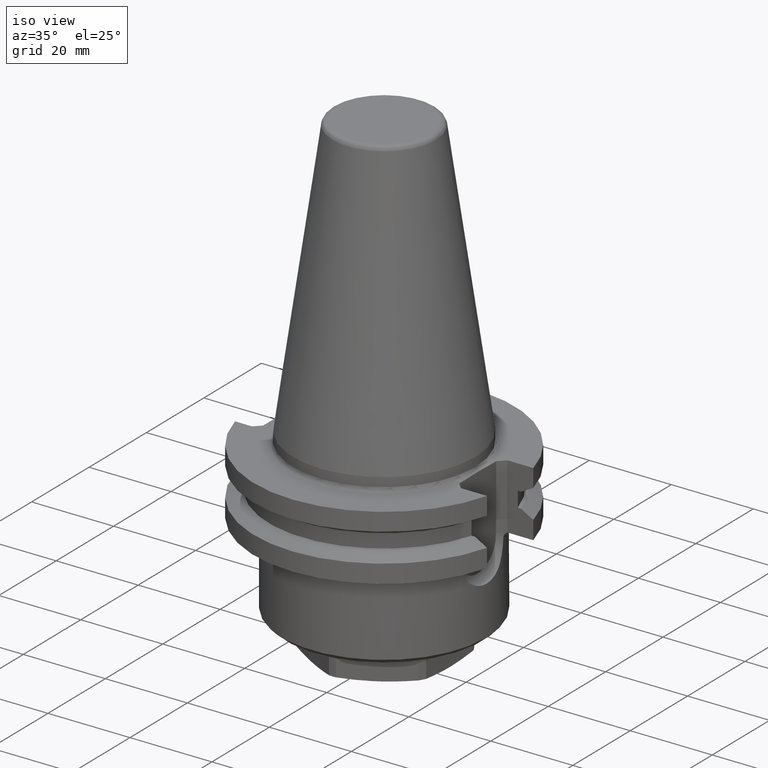
[diagram: clean part render]
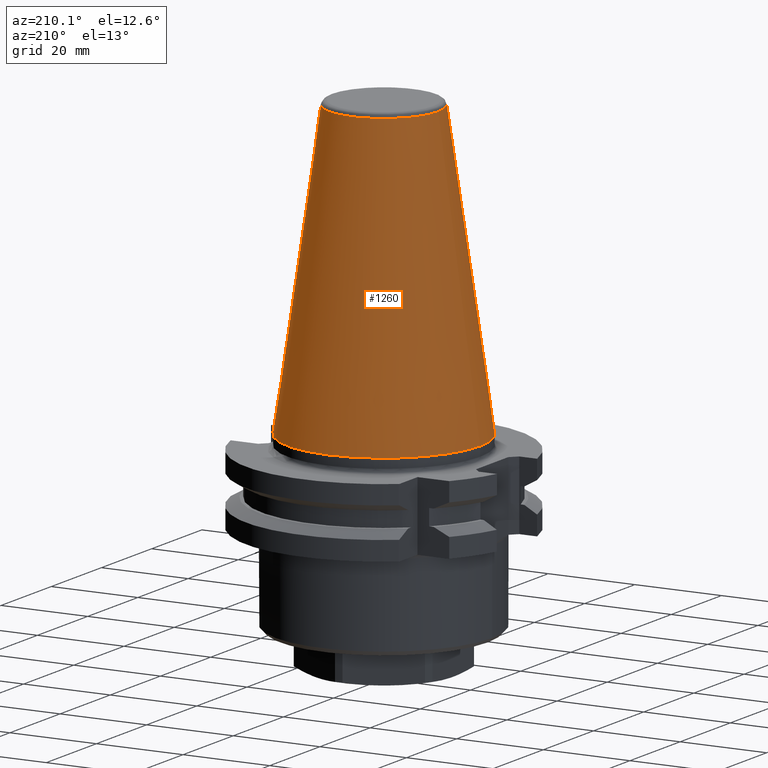
[diagram: tour spotlight — one face highlighted and labeled with its STEP entity id]
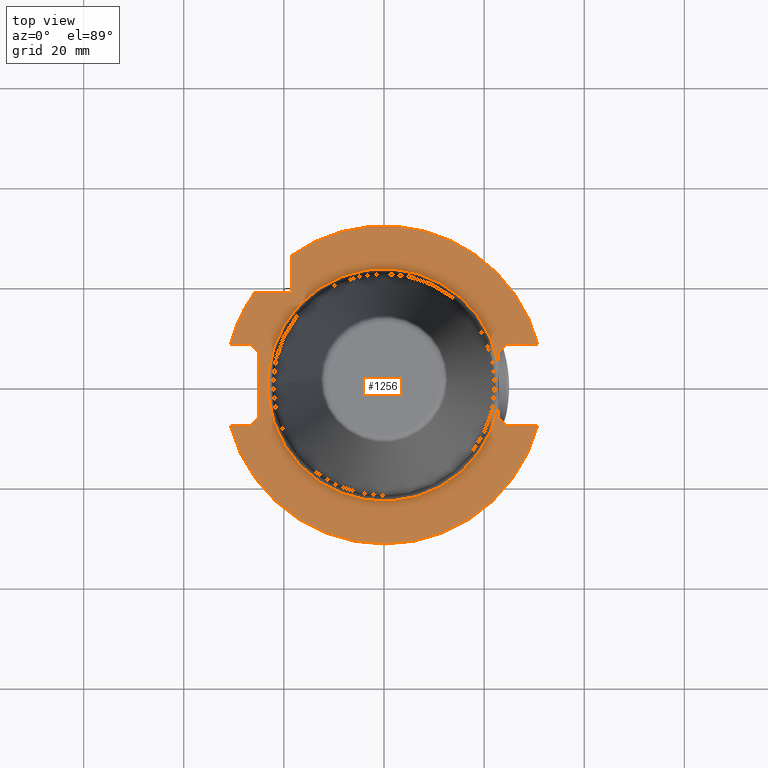
[diagram: tour spotlight — one face highlighted and labeled with its STEP entity id]
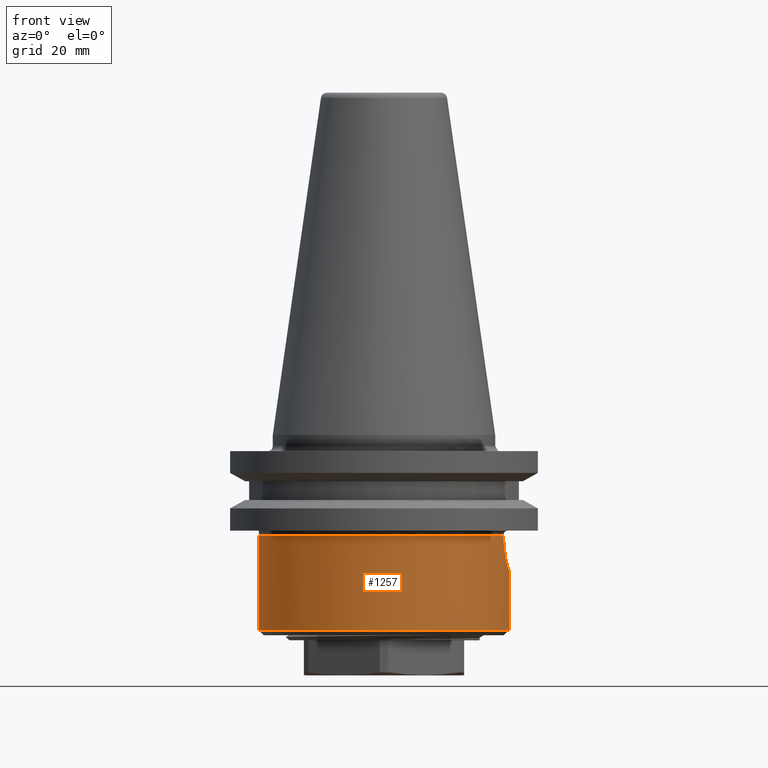
[diagram: tour spotlight — one face highlighted and labeled with its STEP entity id]
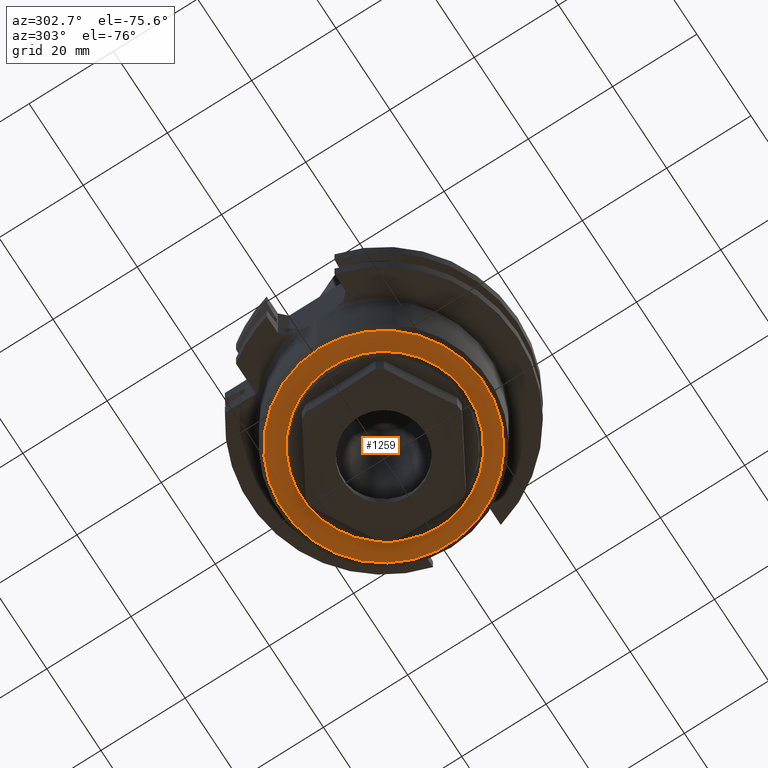
[diagram: tour spotlight — one face highlighted and labeled with its STEP entity id]
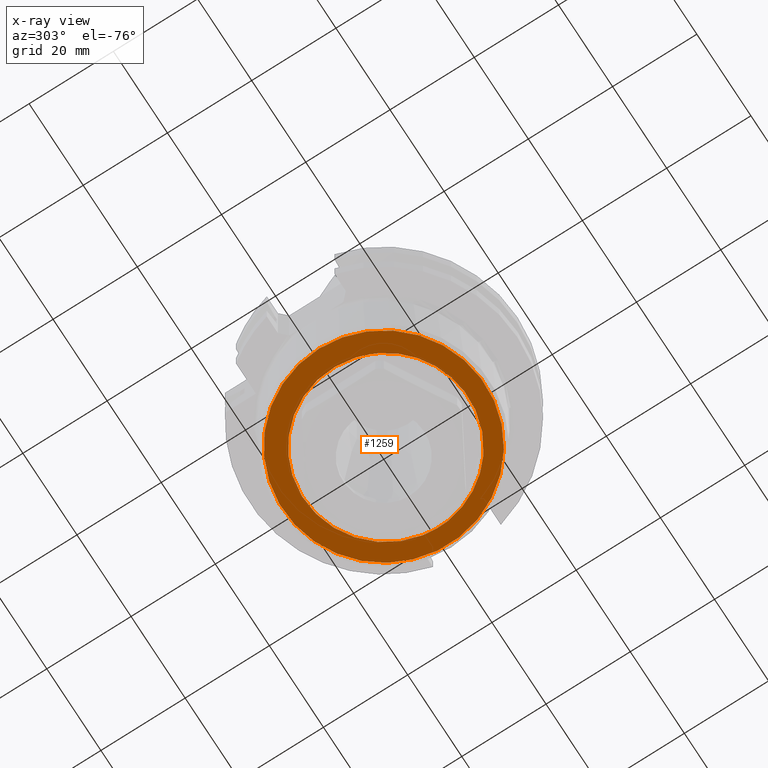
[diagram: x-ray of the same camera — body ghosted, this tour face saturated]
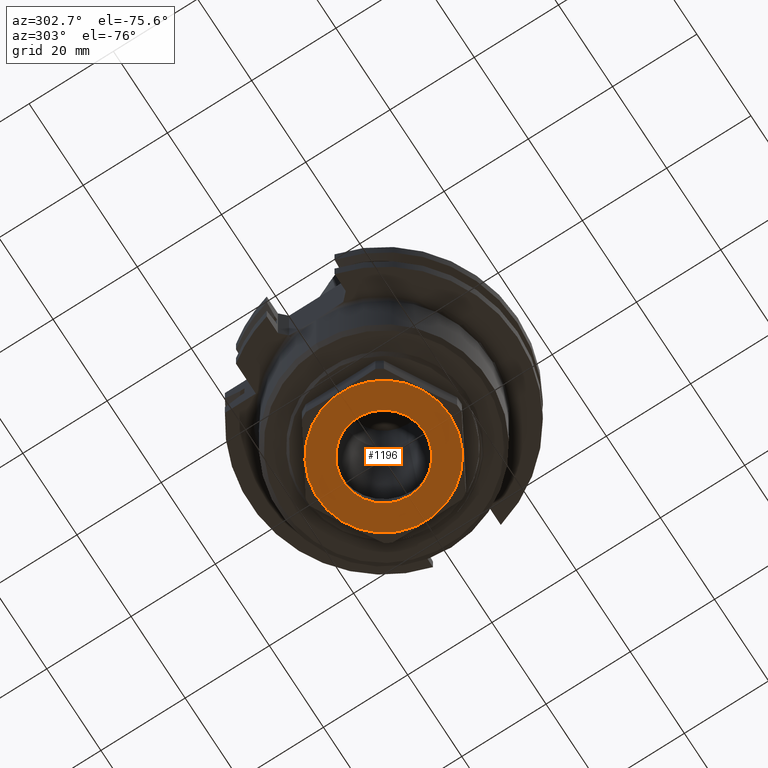
[diagram: tour spotlight — one face highlighted and labeled with its STEP entity id]
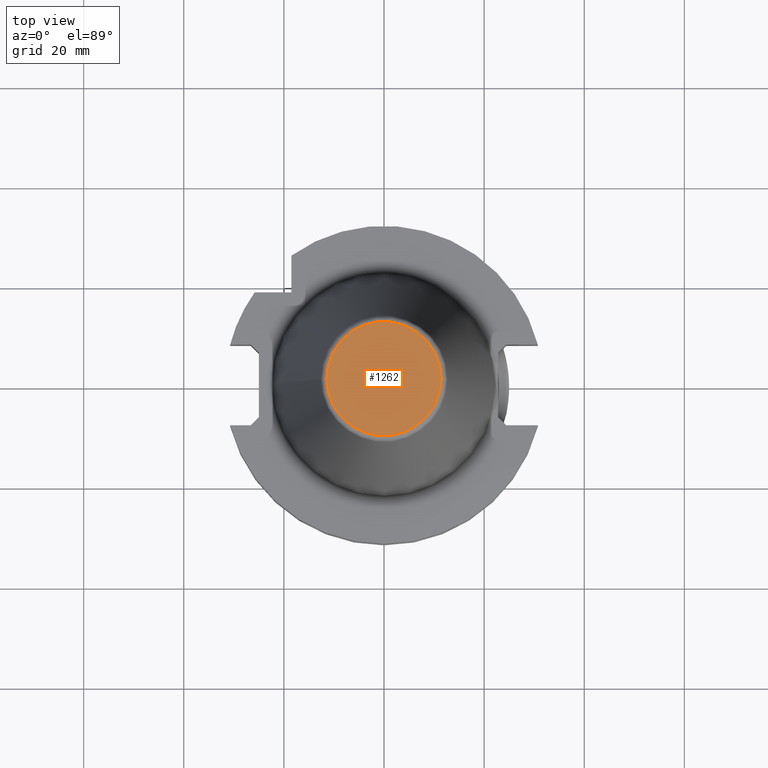
[diagram: tour spotlight — one face highlighted and labeled with its STEP entity id]
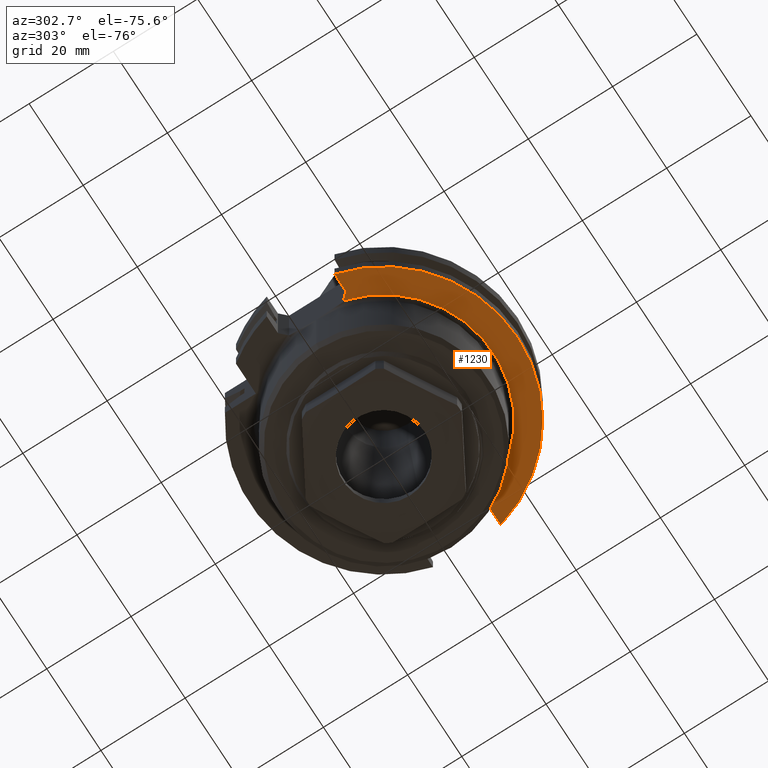
[diagram: tour spotlight — one face highlighted and labeled with its STEP entity id]
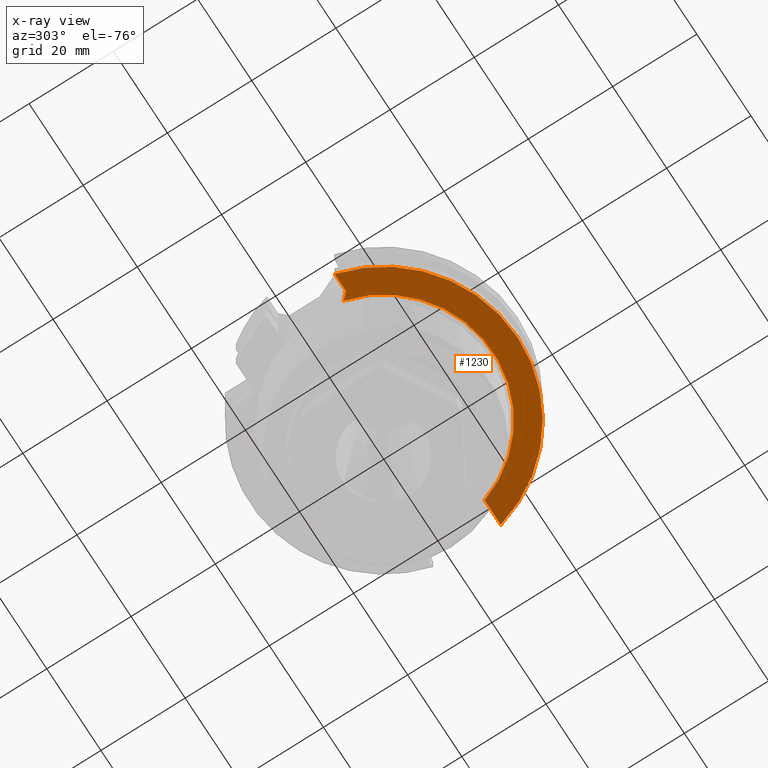
[diagram: x-ray of the same camera — body ghosted, this tour face saturated]
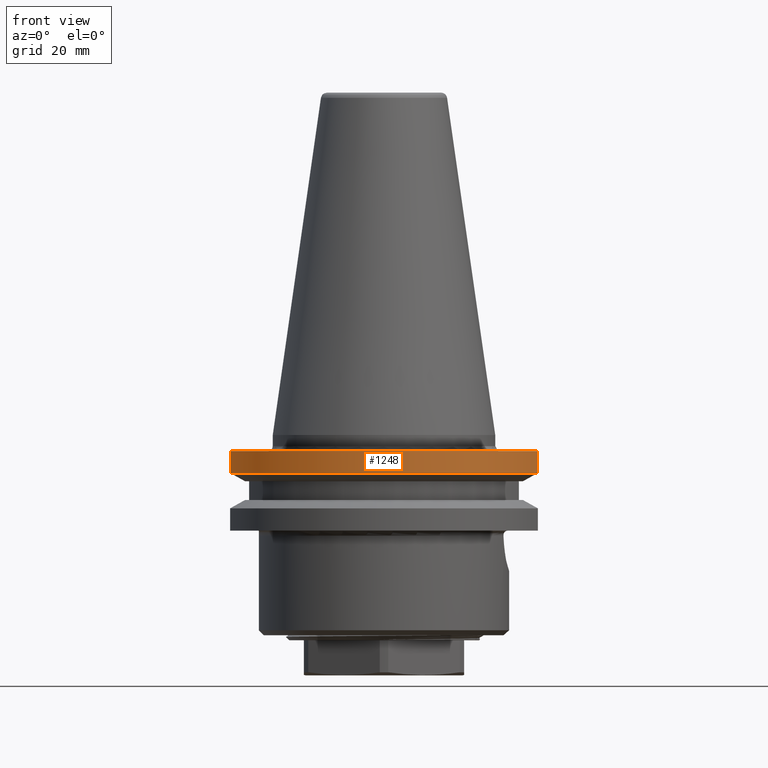
[diagram: tour spotlight — one face highlighted and labeled with its STEP entity id]
A machine part: a face-by-face anatomy tour. The part has 74 B-rep faces; the first image is the clean iso view, then the 8 largest visible faces are spotlighted one at a time (largest first), each with its STEP entity span.

Face 1 — auxiliary view, entity #1260. In plain terms, the highlighted conical surface has half-angle 8.13 deg.
Definition (entity closure, byte-faithful):
#258=CONICAL_SURFACE('',#1395,22.225,0.141897013516391);
#601=ORIENTED_EDGE('',*,*,#689,.F.);
#602=ORIENTED_EDGE('',*,*,#790,.T.);
#689=EDGE_CURVE('',#848,#848,#947,.T.);
#790=EDGE_CURVE('',#914,#914,#973,.F.);
#848=VERTEX_POINT('',#2257);
#914=VERTEX_POINT('',#2526);
#947=CIRCLE('',#1332,22.225);
#973=CIRCLE('',#1396,12.600759170466);
#1054=EDGE_LOOP('',(#601));
#1055=EDGE_LOOP('',(#602));
#1145=FACE_BOUND('',#1054,.T.);
#1146=FACE_BOUND('',#1055,.T.);
#1260=ADVANCED_FACE('',(#1145,#1146),#258,.T.);
#1332=AXIS2_PLACEMENT_3D('',#2256,#1539,#1540);
#1395=AXIS2_PLACEMENT_3D('',#2524,#1719,#1720);
#1396=AXIS2_PLACEMENT_3D('',#2525,#1721,#1722);
#1539=DIRECTION('',(0.,0.,-1.));
#1540=DIRECTION('',(-1.,0.,0.));
#1719=DIRECTION('',(0.,0.,-1.));
#1720=DIRECTION('',(-1.,0.,0.));
#1721=DIRECTION('',(0.,0.,1.));
#1722=DIRECTION('',(1.,0.,0.));
#2256=CARTESIAN_POINT('',(0.,0.,0.));
#2257=CARTESIAN_POINT('',(-22.225,0.,0.));
#2524=CARTESIAN_POINT('',(0.,0.,0.));
#2525=CARTESIAN_POINT('',(0.,0.,67.369705578675));
#2526=CARTESIAN_POINT('',(12.600759170466,0.,67.369705578675));

Face 2 — top view, entity #1256. In plain terms, the highlighted planar face has unit normal (0, 0, 1).
Definition (entity closure, byte-faithful):
#103=LINE('',#2449,#183);
#106=LINE('',#2457,#186);
#108=LINE('',#2461,#188);
#110=LINE('',#2474,#190);
#111=LINE('',#2475,#191);
#113=LINE('',#2479,#193);
#115=LINE('',#2483,#195);
#118=LINE('',#2491,#198);
#120=LINE('',#2495,#200);
#122=LINE('',#2499,#202);
#124=LINE('',#2503,#204);
#126=LINE('',#2507,#206);
#129=LINE('',#2515,#209);
#183=VECTOR('',#1642,1000.);
#186=VECTOR('',#1651,1000.);
#188=VECTOR('',#1655,1000.);
#190=VECTOR('',#1663,1000.);
#191=VECTOR('',#1664,1000.);
#193=VECTOR('',#1668,1000.);
#195=VECTOR('',#1672,1000.);
#198=VECTOR('',#1681,1000.);
#200=VECTOR('',#1685,1000.);
#202=VECTOR('',#1689,1000.);
#204=VECTOR('',#1693,1000.);
#206=VECTOR('',#1697,1000.);
#209=VECTOR('',#1706,1000.);
#571=ORIENTED_EDGE('',*,*,#787,.F.);
#572=ORIENTED_EDGE('',*,*,#786,.F.);
#573=ORIENTED_EDGE('',*,*,#783,.T.);
#574=ORIENTED_EDGE('',*,*,#781,.T.);
#575=ORIENTED_EDGE('',*,*,#779,.T.);
#576=ORIENTED_EDGE('',*,*,#777,.T.);
#577=ORIENTED_EDGE('',*,*,#775,.T.);
#578=ORIENTED_EDGE('',*,*,#773,.F.);
#579=ORIENTED_EDGE('',*,*,#771,.T.);
#580=ORIENTED_EDGE('',*,*,#769,.T.);
#581=ORIENTED_EDGE('',*,*,#767,.T.);
#582=ORIENTED_EDGE('',*,*,#765,.T.);
#583=ORIENTED_EDGE('',*,*,#766,.T.);
#584=ORIENTED_EDGE('',*,*,#762,.T.);
#585=ORIENTED_EDGE('',*,*,#760,.T.);
#586=ORIENTED_EDGE('',*,*,#758,.F.);
#587=ORIENTED_EDGE('',*,*,#756,.F.);
#756=EDGE_CURVE('',#895,#896,#103,.T.);
#758=EDGE_CURVE('',#896,#897,#967,.T.);
#760=EDGE_CURVE('',#898,#897,#106,.T.);
#762=EDGE_CURVE('',#899,#898,#108,.T.);
#765=EDGE_CURVE('',#901,#900,#968,.F.);
#766=EDGE_CURVE('',#900,#899,#110,.T.);
#767=EDGE_CURVE('',#902,#901,#111,.T.);
#769=EDGE_CURVE('',#903,#902,#113,.T.);
#771=EDGE_CURVE('',#904,#903,#115,.T.);
#773=EDGE_CURVE('',#904,#905,#969,.T.);
#775=EDGE_CURVE('',#906,#905,#118,.T.);
#777=EDGE_CURVE('',#907,#906,#120,.T.);
#779=EDGE_CURVE('',#908,#907,#122,.T.);
#781=EDGE_CURVE('',#909,#908,#124,.T.);
#783=EDGE_CURVE('',#910,#909,#126,.T.);
#786=EDGE_CURVE('',#910,#911,#970,.T.);
#787=EDGE_CURVE('',#911,#895,#129,.T.);
#895=VERTEX_POINT('',#2448);
#896=VERTEX_POINT('',#2450);
#897=VERTEX_POINT('',#2454);
#898=VERTEX_POINT('',#2458);
#899=VERTEX_POINT('',#2462);
#900=VERTEX_POINT('',#2470);
#901=VERTEX_POINT('',#2471);
#902=VERTEX_POINT('',#2476);
#903=VERTEX_POINT('',#2480);
#904=VERTEX_POINT('',#2484);
#905=VERTEX_POINT('',#2488);
#906=VERTEX_POINT('',#2492);
#907=VERTEX_POINT('',#2496);
#908=VERTEX_POINT('',#2500);
#909=VERTEX_POINT('',#2504);
#910=VERTEX_POINT('',#2508);
#911=VERTEX_POINT('',#2512);
#967=CIRCLE('',#1371,31.775);
#968=CIRCLE('',#1375,23.225);
#969=CIRCLE('',#1380,31.775);
#970=CIRCLE('',#1387,31.775);
#1047=EDGE_LOOP('',(#571,#572,#573,#574,#575,#576,#577,#578,#579,#580,#581,
#582,#583,#584,#585,#586,#587));
#1138=FACE_BOUND('',#1047,.T.);
#1191=PLANE('',#1389);
#1256=ADVANCED_FACE('',(#1138),#1191,.T.);
#1371=AXIS2_PLACEMENT_3D('',#2453,#1646,#1647);
#1375=AXIS2_PLACEMENT_3D('',#2472,#1659,#1660);
#1380=AXIS2_PLACEMENT_3D('',#2487,#1676,#1677);
#1387=AXIS2_PLACEMENT_3D('',#2513,#1702,#1703);
#1389=AXIS2_PLACEMENT_3D('',#2516,#1707,#1708);
#1642=DIRECTION('',(0.,1.,0.));
#1646=DIRECTION('',(0.,0.,-1.));
#1647=DIRECTION('',(-1.,0.,0.));
#1651=DIRECTION('',(1.,-1.91417762866407E-15,0.));
#1655=DIRECTION('',(0.707106781186553,0.707106781186542,0.));
#1659=DIRECTION('',(0.,0.,1.));
#1660=DIRECTION('',(1.,0.,0.));
#1663=DIRECTION('',(0.,1.,0.));
#1664=DIRECTION('',(0.,1.,0.));
#1668=DIRECTION('',(-0.707106781186553,0.707106781186542,0.));
#1672=DIRECTION('',(-1.,4.06762746091115E-15,0.));
#1676=DIRECTION('',(0.,0.,-1.));
#1677=DIRECTION('',(-1.,0.,0.));
#1681=DIRECTION('',(-1.,-3.1105386465791E-15,0.));
#1685=DIRECTION('',(-0.707106781186548,-0.707106781186547,0.));
#1689=DIRECTION('',(0.,-1.,0.));
#1693=DIRECTION('',(0.707106781186548,-0.707106781186547,0.));
#1697=DIRECTION('',(1.,2.51235813762158E-15,0.));
#1702=DIRECTION('',(0.,0.,-1.));
#1703=DIRECTION('',(-1.,0.,0.));
#1706=DIRECTION('',(1.,1.92822466770596E-16,0.));
#1707=DIRECTION('',(0.,0.,1.));
#1708=DIRECTION('',(1.,0.,0.));
#2448=CARTESIAN_POINT('',(-18.5,18.5,-3.20000000000001));
#2449=CARTESIAN_POINT('',(-18.5,0.,-3.2));
#2450=CARTESIAN_POINT('',(-18.5,25.8340981069593,-3.2));
#2453=CARTESIAN_POINT('',(0.,0.,-3.2));
#2454=CARTESIAN_POINT('',(30.7383819515602,8.04999999999997,-3.2));
#2457=CARTESIAN_POINT('',(-22.225,8.05000000000008,-3.2));
#2458=CARTESIAN_POINT('',(24.4000000000001,8.04999999999999,-3.20000000000001));
#2461=CARTESIAN_POINT('',(-2.9375000000003,-19.2875,-3.2));
#2462=CARTESIAN_POINT('',(22.8,6.44999999999998,-3.20000000000001));
#2470=CARTESIAN_POINT('',(22.8,4.422739535627,-3.2));
#2471=CARTESIAN_POINT('',(22.8,-4.422739535627,-3.2));
#2472=CARTESIAN_POINT('',(0.,0.,-3.2));
#2474=CARTESIAN_POINT('',(22.8,0.,-3.2));
#2475=CARTESIAN_POINT('',(22.8,0.,-3.2));
#2476=CARTESIAN_POINT('',(22.8,-6.44999999999998,-3.20000000000001));
#2479=CARTESIAN_POINT('',(-2.9375000000003,19.2875,-3.2));
#2480=CARTESIAN_POINT('',(24.4000000000001,-8.04999999999999,-3.20000000000001));
#2483=CARTESIAN_POINT('',(-22.225,-8.0499999999998,-3.2));
#2484=CARTESIAN_POINT('',(30.7383819515602,-8.05000000000001,-3.2));
#2487=CARTESIAN_POINT('',(0.,0.,-3.2));
#2488=CARTESIAN_POINT('',(-30.7383819515602,-8.05000000000001,-3.2));
#2491=CARTESIAN_POINT('',(-22.225,-8.04999999999998,-3.2));
#2492=CARTESIAN_POINT('',(-26.6,-8.05,-3.20000000000001));
#2495=CARTESIAN_POINT('',(-20.3875,-1.8375,-3.2));
#2496=CARTESIAN_POINT('',(-25.,-6.44999999999998,-3.20000000000001));
#2499=CARTESIAN_POINT('',(-25.,0.,-3.2));
#2500=CARTESIAN_POINT('',(-25.,6.44999999999998,-3.20000000000001));
#2503=CARTESIAN_POINT('',(-20.3875,1.8375,-3.2));
#2504=CARTESIAN_POINT('',(-26.6,8.05,-3.20000000000001));
#2507=CARTESIAN_POINT('',(-22.225,8.05000000000001,-3.2));
#2508=CARTESIAN_POINT('',(-30.7383819515602,8.04999999999999,-3.2));
#2512=CARTESIAN_POINT('',(-25.8340981069593,18.5,-3.2));
#2513=CARTESIAN_POINT('',(0.,0.,-3.2));
#2515=CARTESIAN_POINT('',(-22.225,18.5,-3.2));
#2516=CARTESIAN_POINT('',(-22.225,0.,-3.2));

Face 3 — front view, entity #1257. In plain terms, the highlighted cylindrical surface (bore or boss wall) has radius 25 mm, axis along (0, 0, -1).
Definition (entity closure, byte-faithful):
#46=CYLINDRICAL_SURFACE('',#1390,25.);
#222=B_SPLINE_CURVE_WITH_KNOTS('',3,(#2195,#2196,#2197,#2198,#2199,#2200,
#2201),.UNSPECIFIED.,.F.,.F.,(4,1,1,1,4),(-0.00598309166484147,-0.0029923840624602,
-1.67646007892628E-6,0.00298903114230234,0.00597973874468362),
 .UNSPECIFIED.);
#229=B_SPLINE_CURVE_WITH_KNOTS('',3,(#2276,#2277,#2278,#2279),
 .UNSPECIFIED.,.F.,.F.,(4,4),(0.00180054933040777,0.00719586275076195),
 .UNSPECIFIED.);
#230=B_SPLINE_CURVE_WITH_KNOTS('',3,(#2280,#2281,#2282,#2283),
 .UNSPECIFIED.,.F.,.F.,(4,4),(0.00113943040778841,0.0065555825684681),
 .UNSPECIFIED.);
#588=ORIENTED_EDGE('',*,*,#788,.F.);
#589=ORIENTED_EDGE('',*,*,#725,.T.);
#590=ORIENTED_EDGE('',*,*,#729,.T.);
#591=ORIENTED_EDGE('',*,*,#696,.F.);
#592=ORIENTED_EDGE('',*,*,#668,.F.);
#593=ORIENTED_EDGE('',*,*,#695,.F.);
#668=EDGE_CURVE('',#831,#832,#222,.T.);
#695=EDGE_CURVE('',#854,#831,#229,.T.);
#696=EDGE_CURVE('',#832,#855,#230,.T.);
#725=EDGE_CURVE('',#854,#875,#957,.T.);
#729=EDGE_CURVE('',#875,#855,#959,.T.);
#788=EDGE_CURVE('',#912,#912,#971,.T.);
#831=VERTEX_POINT('',#2193);
#832=VERTEX_POINT('',#2194);
#854=VERTEX_POINT('',#2275);
#855=VERTEX_POINT('',#2284);
#875=VERTEX_POINT('',#2367);
#912=VERTEX_POINT('',#2519);
#957=CIRCLE('',#1351,25.);
#959=CIRCLE('',#1354,25.);
#971=CIRCLE('',#1391,25.);
#1048=EDGE_LOOP('',(#588));
#1049=EDGE_LOOP('',(#589,#590,#591,#592,#593));
#1139=FACE_BOUND('',#1048,.T.);
#1140=FACE_BOUND('',#1049,.T.);
#1257=ADVANCED_FACE('',(#1139,#1140),#46,.T.);
#1351=AXIS2_PLACEMENT_3D('',#2368,#1590,#1591);
#1354=AXIS2_PLACEMENT_3D('',#2382,#1596,#1597);
#1390=AXIS2_PLACEMENT_3D('',#2517,#1709,#1710);
#1391=AXIS2_PLACEMENT_3D('',#2518,#1711,#1712);
#1590=DIRECTION('',(0.,0.,-1.));
#1591=DIRECTION('',(-1.,0.,0.));
#1596=DIRECTION('',(0.,0.,-1.));
#1597=DIRECTION('',(-1.,0.,0.));
#1709=DIRECTION('',(0.,0.,-1.));
#1710=DIRECTION('',(-1.,0.,0.));
#1711=DIRECTION('',(0.,0.,-1.));
#1712=DIRECTION('',(-1.,0.,0.));
#2193=CARTESIAN_POINT('',(24.4000000000001,-5.44426303552612,-25.0297976356705));
#2194=CARTESIAN_POINT('',(24.4000000000001,5.44426303552612,-25.0297976356705));
#2195=CARTESIAN_POINT('',(24.4000000000001,-5.44426303552612,-25.0297976356705));
#2196=CARTESIAN_POINT('',(24.5639638420221,-4.70941284198637,-25.7044779521237));
#2197=CARTESIAN_POINT('',(24.8726490889182,-3.01020183473565,-26.7658384079956));
#2198=CARTESIAN_POINT('',(25.0635207173429,-0.00144342295028522,-27.3415694549555));
#2199=CARTESIAN_POINT('',(24.8732676943358,3.0057670805384,-26.7678826933792));
#2200=CARTESIAN_POINT('',(24.5639763529273,4.70935677083673,-25.7045294321415));
#2201=CARTESIAN_POINT('',(24.4000000000001,5.44426303552611,-25.0297976356705));
#2275=CARTESIAN_POINT('',(23.8647856900596,-7.44795300519036,-20.1));
#2276=CARTESIAN_POINT('',(23.8647856900596,-7.44795300519035,-20.1));
#2277=CARTESIAN_POINT('',(23.921788854132,-7.26530304844467,-21.8887348559009));
#2278=CARTESIAN_POINT('',(24.1462303265032,-6.58160338681308,-23.6410780855399));
#2279=CARTESIAN_POINT('',(24.4000000000001,-5.44426303552611,-25.0297976356705));
#2280=CARTESIAN_POINT('',(24.4000000000001,5.44426303552612,-25.0297976356705));
#2281=CARTESIAN_POINT('',(24.1472702791164,6.57694254592492,-23.6467690828339));
#2282=CARTESIAN_POINT('',(23.9217943988583,7.26528528199205,-21.8889088470347));
#2283=CARTESIAN_POINT('',(23.8647856900596,7.44795300519035,-20.1));
#2284=CARTESIAN_POINT('',(23.8647856900596,7.44795300519035,-20.1));
#2367=CARTESIAN_POINT('',(-25.,0.,-20.1));
#2368=CARTESIAN_POINT('',(0.,0.,-20.1));
#2382=CARTESIAN_POINT('',(0.,0.,-20.1));
#2517=CARTESIAN_POINT('',(0.,0.,57.));
#2518=CARTESIAN_POINT('',(0.,0.,-39.));
#2519=CARTESIAN_POINT('',(-25.,0.,-39.));

Face 4 — auxiliary view, entity #1259. An x-ray twin of the same camera follows (body ghosted, this face saturated) — the face is partly hidden behind the body. In plain terms, the highlighted planar face has unit normal (0, 0, 1).
Definition (entity closure, byte-faithful):
#217=B_SPLINE_CURVE_WITH_KNOTS('',3,(#1915,#1916,#1917,#1918,#1919,#1920,
#1921,#1922,#1923,#1924,#1925,#1926,#1927),.UNSPECIFIED.,.F.,.F.,(4,1,1,
1,1,1,1,1,1,1,4),(3.71915165674914E-16,0.00482876578743539,0.00965753157487042,
0.0144862973623054,0.0169006802560229,0.0193150631497405,0.0241438289371755,
0.026558211830893,0.0289725947246105,0.0338013605120455,0.0386301262994805),
 .UNSPECIFIED.);
#218=B_SPLINE_CURVE_WITH_KNOTS('',3,(#2075,#2076,#2077,#2078,#2079,#2080,
#2081,#2082,#2083,#2084,#2085,#2086),.UNSPECIFIED.,.F.,.F.,(4,1,1,1,1,1,
1,1,1,4),(0.,0.00483487440976127,0.00725231161464191,0.00966974881952255,
0.0145046232292838,0.0193394976390451,0.0241743720488064,0.0290092464585676,
0.0338441208683289,0.0386789952780902),.UNSPECIFIED.);
#220=B_SPLINE_CURVE_WITH_KNOTS('',3,(#2150,#2151,#2152,#2153,#2154,#2155,
#2156),.UNSPECIFIED.,.F.,.F.,(4,1,1,1,4),(0.,0.00754053619235035,0.0150810723847007,
0.0226216085770511,0.0301621447694014),.UNSPECIFIED.);
#596=ORIENTED_EDGE('',*,*,#658,.F.);
#597=ORIENTED_EDGE('',*,*,#666,.F.);
#598=ORIENTED_EDGE('',*,*,#661,.F.);
#599=ORIENTED_EDGE('',*,*,#663,.F.);
#600=ORIENTED_EDGE('',*,*,#789,.T.);
#658=EDGE_CURVE('',#824,#826,#217,.T.);
#661=EDGE_CURVE('',#827,#829,#218,.T.);
#663=EDGE_CURVE('',#826,#827,#220,.T.);
#666=EDGE_CURVE('',#829,#824,#937,.F.);
#789=EDGE_CURVE('',#913,#913,#972,.T.);
#824=VERTEX_POINT('',#1913);
#826=VERTEX_POINT('',#1928);
#827=VERTEX_POINT('',#2073);
#829=VERTEX_POINT('',#2087);
#913=VERTEX_POINT('',#2522);
#937=CIRCLE('',#1314,20.);
#972=CIRCLE('',#1393,24.);
#1052=EDGE_LOOP('',(#596,#597,#598,#599));
#1053=EDGE_LOOP('',(#600));
#1143=FACE_BOUND('',#1052,.T.);
#1144=FACE_BOUND('',#1053,.T.);
#1192=PLANE('',#1394);
#1259=ADVANCED_FACE('',(#1143,#1144),#1192,.F.);
#1314=AXIS2_PLACEMENT_3D('',#2190,#1495,#1496);
#1393=AXIS2_PLACEMENT_3D('',#2521,#1715,#1716);
#1394=AXIS2_PLACEMENT_3D('',#2523,#1717,#1718);
#1495=DIRECTION('',(0.,0.,1.));
#1496=DIRECTION('',(1.,0.,0.));
#1715=DIRECTION('',(0.,0.,-1.));
#1716=DIRECTION('',(-1.,0.,0.));
#1717=DIRECTION('',(0.,0.,1.));
#1718=DIRECTION('',(1.,0.,0.));
#1913=CARTESIAN_POINT('',(12.2102692347192,-15.8401175884421,-40.));
#1915=CARTESIAN_POINT('',(12.2102692347195,-15.8401175884418,-40.));
#1916=CARTESIAN_POINT('',(10.9128859597601,-16.7965370497452,-40.));
#1917=CARTESIAN_POINT('',(8.08247667498942,-18.3913486092994,-40.));
#1918=CARTESIAN_POINT('',(3.45125470235496,-19.6849054395798,-40.));
#1919=CARTESIAN_POINT('',(-0.583825428998824,-19.8232575948972,-40.));
#1920=CARTESIAN_POINT('',(-3.7754606574268,-19.3339880884909,-40.));
#1921=CARTESIAN_POINT('',(-6.8309263836333,-18.4730011342565,-40.));
#1922=CARTESIAN_POINT('',(-9.73342612810068,-17.0459157204391,-40.));
#1923=CARTESIAN_POINT('',(-12.3157273492157,-15.1048944246577,-40.));
#1924=CARTESIAN_POINT('',(-14.6024155753863,-12.9008096340685,-40.));
#1925=CARTESIAN_POINT('',(-16.9575611309799,-9.6125414096985,-40.));
#1926=CARTESIAN_POINT('',(-18.1305676543413,-6.59425759134105,-40.));
#1927=CARTESIAN_POINT('',(-18.5191191284778,-5.02974419878846,-40.));
#1928=CARTESIAN_POINT('',(-18.5191191284778,-5.02974419878846,-40.));
#2073=CARTESIAN_POINT('',(-4.90367331355154,18.5528997203661,-40.));
#2075=CARTESIAN_POINT('',(-4.90367331355154,18.5528997203661,-40.));
#2076=CARTESIAN_POINT('',(-3.35254857696947,18.999219372783,-40.));
#2077=CARTESIAN_POINT('',(-0.948483686361341,19.3658498212977,-40.));
#2078=CARTESIAN_POINT('',(2.22747227710878,19.2584581730899,-40.));
#2079=CARTESIAN_POINT('',(5.4228620805804,18.7530032772738,-40.));
#2080=CARTESIAN_POINT('',(9.17764410538627,17.4224266059859,-40.));
#2081=CARTESIAN_POINT('',(13.2602579056275,14.7017798086659,-40.));
#2082=CARTESIAN_POINT('',(16.4705900119971,11.1611270720062,-40.));
#2083=CARTESIAN_POINT('',(18.783319397389,6.83756645981275,-40.));
#2084=CARTESIAN_POINT('',(19.9659772925365,2.19747337181823,-40.));
#2085=CARTESIAN_POINT('',(20.0028570903016,-1.05090607377146,-40.));
#2086=CARTESIAN_POINT('',(19.823078847883,-2.65434455009435,-40.));
#2087=CARTESIAN_POINT('',(19.8230788478823,-2.65434455009924,-40.));
#2150=CARTESIAN_POINT('',(-18.5191191284778,-5.02974419878846,-40.));
#2151=CARTESIAN_POINT('',(-19.1249855934792,-2.59020590930029,-40.));
#2152=CARTESIAN_POINT('',(-19.4329588049806,2.51419283958016,-40.));
#2153=CARTESIAN_POINT('',(-16.953648011442,9.78850572114126,-40.));
#2154=CARTESIAN_POINT('',(-11.8955155872724,15.5709559791241,-39.9999999999997));
#2155=CARTESIAN_POINT('',(-7.31935241370245,17.8578137412036,-40.0000000000007));
#2156=CARTESIAN_POINT('',(-4.90367331355139,18.5528997203656,-40.0000000000007));
#2190=CARTESIAN_POINT('',(6.44349914410077E-15,-2.12072628414139E-15,-40.));
#2521=CARTESIAN_POINT('',(0.,0.,-40.));
#2522=CARTESIAN_POINT('',(-24.,0.,-40.));
#2523=CARTESIAN_POINT('',(0.,0.,-40.));

Face 5 — auxiliary view, entity #1196. In plain terms, the highlighted planar face has unit normal (-0, 0, 1).
Definition (entity closure, byte-faithful):
#261=ORIENTED_EDGE('',*,*,#619,.F.);
#262=ORIENTED_EDGE('',*,*,#620,.T.);
#619=EDGE_CURVE('',#798,#798,#922,.F.);
#620=EDGE_CURVE('',#799,#799,#923,.T.);
#798=VERTEX_POINT('',#1758);
#799=VERTEX_POINT('',#1760);
#922=CIRCLE('',#1284,9.59999999999991);
#923=CIRCLE('',#1285,15.7607695154587);
#981=EDGE_LOOP('',(#261));
#982=EDGE_LOOP('',(#262));
#1072=FACE_BOUND('',#981,.T.);
#1073=FACE_BOUND('',#982,.T.);
#1163=PLANE('',#1283);
#1196=ADVANCED_FACE('',(#1072,#1073),#1163,.F.);
#1283=AXIS2_PLACEMENT_3D('',#1756,#1415,#1416);
#1284=AXIS2_PLACEMENT_3D('',#1757,#1417,#1418);
#1285=AXIS2_PLACEMENT_3D('',#1759,#1419,#1420);
#1415=DIRECTION('',(-1.30712758802749E-16,2.25609179163978E-16,1.));
#1416=DIRECTION('',(-1.38777878078145E-17,1.,-4.47950483432614E-16));
#1417=DIRECTION('',(-1.30712758802749E-16,2.25609179163978E-16,1.));
#1418=DIRECTION('',(0.,-1.,2.25609179163978E-16));
#1419=DIRECTION('',(1.30712758802749E-16,-2.25609179163978E-16,-1.));
#1420=DIRECTION('',(1.38777878078145E-17,-1.,4.47950483432614E-16));
#1756=CARTESIAN_POINT('',(2.49312661819125E-15,-15.7607695154587,-48.));
#1757=CARTESIAN_POINT('',(0.,0.,-48.));
#1758=CARTESIAN_POINT('',(0.,-9.59999999999991,-48.));
#1759=CARTESIAN_POINT('',(2.27440200316784E-15,-3.92559971745321E-15,-48.));
#1760=CARTESIAN_POINT('',(2.49312661819125E-15,-15.7607695154587,-48.));

Face 6 — top view, entity #1262. In plain terms, the highlighted planar face has unit normal (0, 0, 1).
Definition (entity closure, byte-faithful):
#605=ORIENTED_EDGE('',*,*,#791,.T.);
#791=EDGE_CURVE('',#915,#915,#974,.T.);
#915=VERTEX_POINT('',#2529);
#974=CIRCLE('',#1398,11.4128197710998);
#1058=EDGE_LOOP('',(#605));
#1149=FACE_BOUND('',#1058,.T.);
#1193=PLANE('',#1399);
#1262=ADVANCED_FACE('',(#1149),#1193,.T.);
#1398=AXIS2_PLACEMENT_3D('',#2528,#1725,#1726);
#1399=AXIS2_PLACEMENT_3D('',#2530,#1727,#1728);
#1725=DIRECTION('',(0.,0.,1.));
#1726=DIRECTION('',(1.,0.,0.));
#1727=DIRECTION('',(0.,0.,1.));
#1728=DIRECTION('',(1.,0.,0.));
#2528=CARTESIAN_POINT('',(0.,0.,68.4));
#2529=CARTESIAN_POINT('',(11.4128197710998,0.,68.4));
#2530=CARTESIAN_POINT('',(-12.4535742963303,0.,68.4));

Face 7 — auxiliary view, entity #1230. An x-ray twin of the same camera follows (body ghosted, this face saturated) — the face is partly hidden behind the body. In plain terms, the highlighted planar face has unit normal (0, 0, -1).
Definition (entity closure, byte-faithful):
#86=LINE('',#2346,#166);
#87=LINE('',#2351,#167);
#88=LINE('',#2352,#168);
#166=VECTOR('',#1583,1000.);
#167=VECTOR('',#1586,1000.);
#168=VECTOR('',#1587,1000.);
#414=ORIENTED_EDGE('',*,*,#718,.T.);
#415=ORIENTED_EDGE('',*,*,#719,.T.);
#416=ORIENTED_EDGE('',*,*,#720,.T.);
#417=ORIENTED_EDGE('',*,*,#715,.T.);
#418=ORIENTED_EDGE('',*,*,#721,.T.);
#715=EDGE_CURVE('',#869,#870,#955,.T.);
#718=EDGE_CURVE('',#871,#872,#86,.T.);
#719=EDGE_CURVE('',#872,#873,#956,.F.);
#720=EDGE_CURVE('',#873,#869,#87,.T.);
#721=EDGE_CURVE('',#870,#871,#88,.T.);
#869=VERTEX_POINT('',#2341);
#870=VERTEX_POINT('',#2342);
#871=VERTEX_POINT('',#2347);
#872=VERTEX_POINT('',#2348);
#873=VERTEX_POINT('',#2350);
#955=CIRCLE('',#1347,31.775);
#956=CIRCLE('',#1349,26.);
#1020=EDGE_LOOP('',(#414,#415,#416,#417,#418));
#1111=FACE_BOUND('',#1020,.T.);
#1175=PLANE('',#1348);
#1230=ADVANCED_FACE('',(#1111),#1175,.T.);
#1347=AXIS2_PLACEMENT_3D('',#2340,#1577,#1578);
#1348=AXIS2_PLACEMENT_3D('',#2345,#1581,#1582);
#1349=AXIS2_PLACEMENT_3D('',#2349,#1584,#1585);
#1577=DIRECTION('',(0.,0.,-1.));
#1578=DIRECTION('',(-1.,0.,0.));
#1581=DIRECTION('',(0.,0.,-1.));
#1582=DIRECTION('',(-1.,0.,0.));
#1583=DIRECTION('',(0.707106781186548,0.707106781186547,0.));
#1584=DIRECTION('',(0.,0.,-1.));
#1585=DIRECTION('',(-1.,0.,0.));
#1586=DIRECTION('',(1.,-4.06762746091115E-15,0.));
#1587=DIRECTION('',(1.,3.1105386465791E-15,0.));
#2340=CARTESIAN_POINT('',(0.,0.,-19.1));
#2341=CARTESIAN_POINT('',(30.7383819515602,-8.05000000000001,-19.1));
#2342=CARTESIAN_POINT('',(-30.7383819515602,-8.05000000000001,-19.1));
#2345=CARTESIAN_POINT('',(-31.775,0.,-19.1));
#2346=CARTESIAN_POINT('',(-25.1625,-6.6125,-19.1));
#2347=CARTESIAN_POINT('',(-26.6,-8.05,-19.1));
#2348=CARTESIAN_POINT('',(-25.1487007342333,-6.59870073423333,-19.1));
#2349=CARTESIAN_POINT('',(0.,0.,-19.1));
#2350=CARTESIAN_POINT('',(24.7224088632156,-8.04999999999999,-19.1));
#2351=CARTESIAN_POINT('',(-31.775,-8.04999999999976,-19.1));
#2352=CARTESIAN_POINT('',(-31.775,-8.05000000000001,-19.1));

Face 8 — front view, entity #1248. In plain terms, the highlighted cylindrical surface (partial cylindrical patch) has radius 31.775 mm, axis along (0, 0, -1).
Definition (entity closure, byte-faithful):
#44=CYLINDRICAL_SURFACE('',#1379,31.775);
#116=LINE('',#2485,#196);
#117=LINE('',#2489,#197);
#196=VECTOR('',#1673,1000.);
#197=VECTOR('',#1678,1000.);
#518=ORIENTED_EDGE('',*,*,#701,.F.);
#519=ORIENTED_EDGE('',*,*,#772,.T.);
#520=ORIENTED_EDGE('',*,*,#773,.T.);
#521=ORIENTED_EDGE('',*,*,#774,.T.);
#701=EDGE_CURVE('',#859,#860,#950,.T.);
#772=EDGE_CURVE('',#859,#904,#116,.F.);
#773=EDGE_CURVE('',#904,#905,#969,.T.);
#774=EDGE_CURVE('',#905,#860,#117,.T.);
#859=VERTEX_POINT('',#2302);
#860=VERTEX_POINT('',#2304);
#904=VERTEX_POINT('',#2484);
#905=VERTEX_POINT('',#2488);
#950=CIRCLE('',#1337,31.775);
#969=CIRCLE('',#1380,31.775);
#1039=EDGE_LOOP('',(#518,#519,#520,#521));
#1130=FACE_BOUND('',#1039,.T.);
#1248=ADVANCED_FACE('',(#1130),#44,.T.);
#1337=AXIS2_PLACEMENT_3D('',#2303,#1551,#1552);
#1379=AXIS2_PLACEMENT_3D('',#2486,#1674,#1675);
#1380=AXIS2_PLACEMENT_3D('',#2487,#1676,#1677);
#1551=DIRECTION('',(0.,0.,-1.));
#1552=DIRECTION('',(-1.,0.,0.));
#1673=DIRECTION('',(0.,0.,-1.));
#1674=DIRECTION('',(0.,0.,-1.));
#1675=DIRECTION('',(-1.,0.,0.));
#1676=DIRECTION('',(0.,0.,-1.));
#1677=DIRECTION('',(-1.,0.,0.));
#1678=DIRECTION('',(0.,0.,-1.));
#2302=CARTESIAN_POINT('',(30.7383819515602,-8.05000000000001,-7.56372960121354));
#2303=CARTESIAN_POINT('',(0.,0.,-7.56372960121354));
#2304=CARTESIAN_POINT('',(-30.7383819515602,-8.05000000000001,-7.56372960121354));
#2484=CARTESIAN_POINT('',(30.7383819515602,-8.05000000000001,-3.2));
#2485=CARTESIAN_POINT('',(30.7383819515602,-8.05000000000001,-60.));
#2486=CARTESIAN_POINT('',(0.,0.,-60.));
#2487=CARTESIAN_POINT('',(0.,0.,-3.2));
#2488=CARTESIAN_POINT('',(-30.7383819515602,-8.05000000000001,-3.2));
#2489=CARTESIAN_POINT('',(-30.7383819515602,-8.05000000000001,-60.));